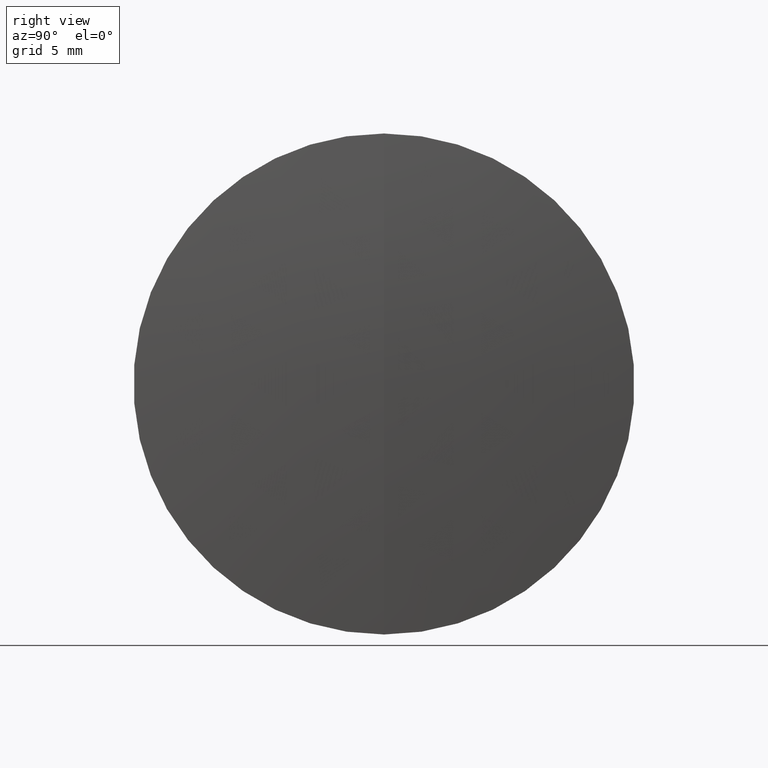
[diagram: clean part render]
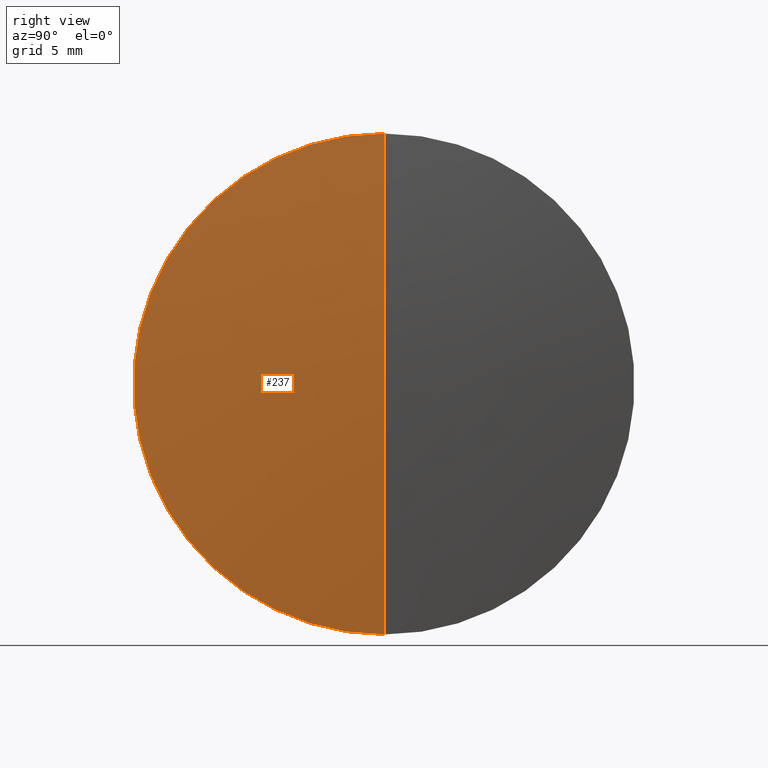
[diagram: same view with one face highlighted and labeled with its STEP entity id]
A machine part, right view. The second image highlights one B-rep face of the part: STEP entity #237.
In plain terms, the highlighted spherical surface has radius 127.06 mm.
Its self-contained STEP definition (entity closure, byte-faithful):
#4 = SPHERICAL_SURFACE ( 'NONE', #321, 127.0600000000000300 ) ;
#6 = CARTESIAN_POINT ( 'NONE',  ( 290.4926931922049700, 0.0000000000000000000, 12.70000000000000600 ) ) ;
#16 = DIRECTION ( 'NONE',  ( 0.0000000000000000000, 1.000000000000000000, 0.0000000000000000000 ) ) ;
#35 = AXIS2_PLACEMENT_3D ( 'NONE', #68, #61, #52 ) ;
#43 = CIRCLE ( 'NONE', #147, 12.70000000000000600 ) ;
#52 = DIRECTION ( 'NONE',  ( 0.0000000000000000000, 0.0000000000000000000, -1.000000000000000000 ) ) ;
#61 = DIRECTION ( 'NONE',  ( 0.0000000000000000000, -1.000000000000000000, 0.0000000000000000000 ) ) ;
#62 = CIRCLE ( 'NONE', #272, 127.0600000000000300 ) ;
#68 = CARTESIAN_POINT ( 'NONE',  ( 164.0689865545651600, 0.0000000000000000000, 0.0000000000000000000 ) ) ;
#76 = CIRCLE ( 'NONE', #35, 127.0600000000000300 ) ;
#80 = EDGE_CURVE ( 'NONE', #250, #323, #62, .T. ) ;
#94 = CARTESIAN_POINT ( 'NONE',  ( 164.0689865545651600, 0.0000000000000000000, 0.0000000000000000000 ) ) ;
#97 = DIRECTION ( 'NONE',  ( 0.0000000000000000000, 0.0000000000000000000, 1.000000000000000000 ) ) ;
#107 = DIRECTION ( 'NONE',  ( -1.000000000000000000, -0.0000000000000000000, -0.0000000000000000000 ) ) ;
#117 = EDGE_CURVE ( 'NONE', #250, #282, #76, .T. ) ;
#147 = AXIS2_PLACEMENT_3D ( 'NONE', #303, #107, #97 ) ;
#159 = ORIENTED_EDGE ( 'NONE', *, *, #178, .F. ) ;
#161 = CARTESIAN_POINT ( 'NONE',  ( 164.0689865545651600, 0.0000000000000000000, 0.0000000000000000000 ) ) ;
#178 = EDGE_CURVE ( 'NONE', #323, #282, #43, .T. ) ;
#195 = FACE_OUTER_BOUND ( 'NONE', #248, .T. ) ;
#205 = CARTESIAN_POINT ( 'NONE',  ( 290.4926931922049700, 1.555301434917140000E-015, -12.70000000000000600 ) ) ;
#211 = DIRECTION ( 'NONE',  ( -0.0000000000000000000, 1.000000000000000000, 1.224646799147353200E-016 ) ) ;
#233 = ORIENTED_EDGE ( 'NONE', *, *, #80, .F. ) ;
#237 = ADVANCED_FACE ( 'NONE', ( #195 ), #4, .T. ) ;
#245 = DIRECTION ( 'NONE',  ( 0.0000000000000000000, 0.0000000000000000000, 1.000000000000000000 ) ) ;
#248 = EDGE_LOOP ( 'NONE', ( #233, #258, #159 ) ) ;
#250 = VERTEX_POINT ( 'NONE', #341 ) ;
#258 = ORIENTED_EDGE ( 'NONE', *, *, #117, .T. ) ;
#272 = AXIS2_PLACEMENT_3D ( 'NONE', #161, #211, #286 ) ;
#282 = VERTEX_POINT ( 'NONE', #6 ) ;
#286 = DIRECTION ( 'NONE',  ( 0.0000000000000000000, -1.224646799147353200E-016, 1.000000000000000000 ) ) ;
#303 = CARTESIAN_POINT ( 'NONE',  ( 290.4926931922049700, 0.0000000000000000000, 0.0000000000000000000 ) ) ;
#321 = AXIS2_PLACEMENT_3D ( 'NONE', #94, #16, #245 ) ;
#323 = VERTEX_POINT ( 'NONE', #205 ) ;
#341 = CARTESIAN_POINT ( 'NONE',  ( 291.1289865545651900, 0.0000000000000000000, 7.780181114983136500E-015 ) ) ;